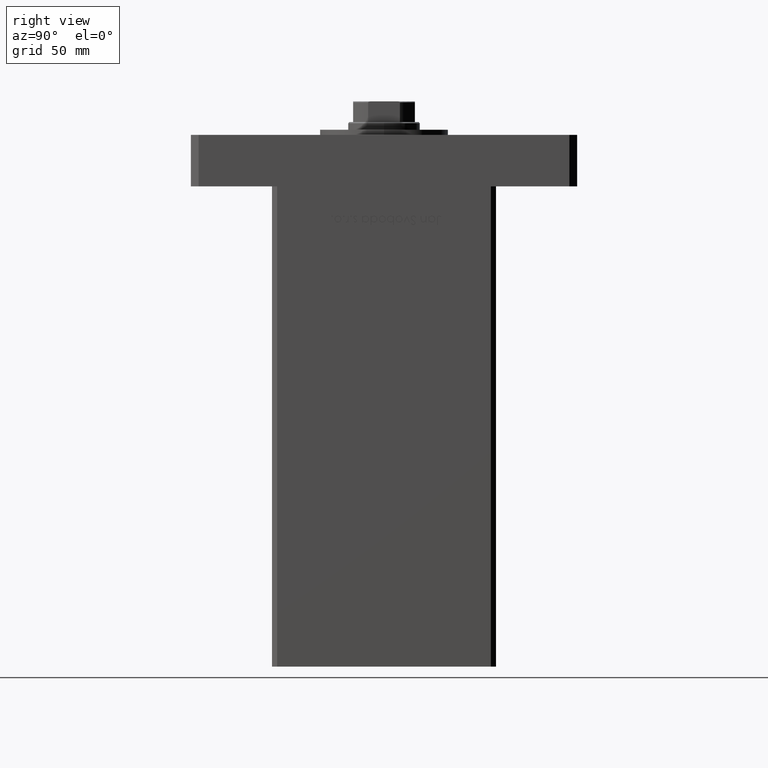
[diagram: clean part render]
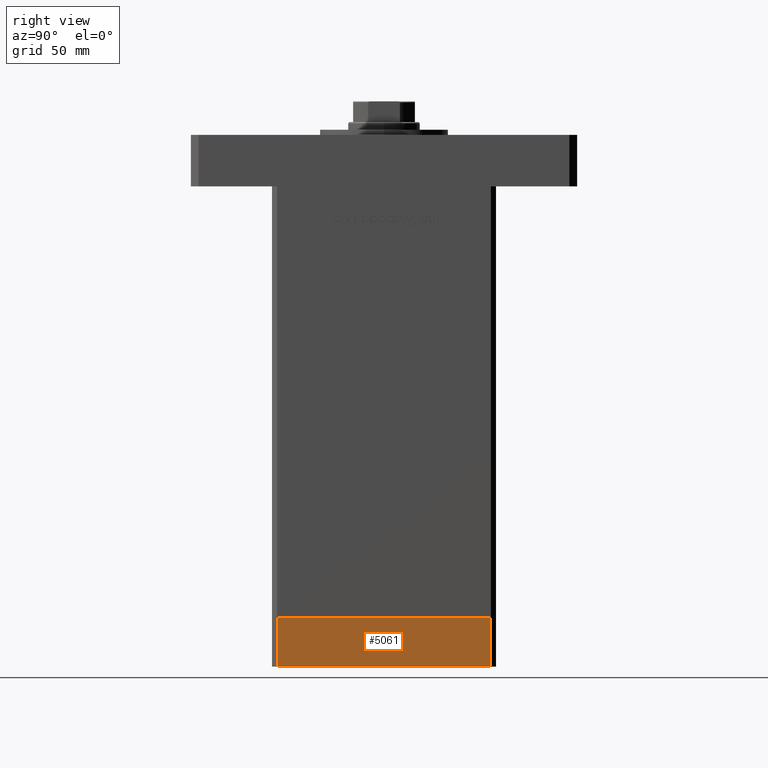
[diagram: same view with one face highlighted and labeled with its STEP entity id]
A machine part, right view. The second image highlights one B-rep face of the part: STEP entity #5061.
In plain terms, the highlighted planar face has unit normal (1, -0, 0).
Its self-contained STEP definition (entity closure, byte-faithful):
#2444 = ORIENTED_EDGE ( 'NONE', *, *, #19954, .F. ) ;
#3972 = FACE_OUTER_BOUND ( 'NONE', #14146, .T. ) ;
#4945 = DIRECTION ( 'NONE',  ( 8.360113137237628665E-17, -1.000000000000000000, 0.000000000000000000 ) ) ;
#5061 = ADVANCED_FACE ( 'NONE', ( #3972 ), #45697, .T. ) ;
#7606 = VERTEX_POINT ( 'NONE', #50317 ) ;
#13474 = CARTESIAN_POINT ( 'NONE',  ( -50.00000000000000000, -41.50000000000000000, -19.00000000000000000 ) ) ;
#14146 = EDGE_LOOP ( 'NONE', ( #24068, #2444, #17307, #45406 ) ) ;
#17307 = ORIENTED_EDGE ( 'NONE', *, *, #53851, .T. ) ;
#19954 = EDGE_CURVE ( 'NONE', #53169, #7606, #32818, .T. ) ;
#20185 = AXIS2_PLACEMENT_3D ( 'NONE', #20897, #24696, #41330 ) ;
#20897 = CARTESIAN_POINT ( 'NONE',  ( -50.00000000000000711, 41.49999999999995026, -19.00000000000000000 ) ) ;
#21066 = LINE ( 'NONE', #46125, #49749 ) ;
#23832 = CARTESIAN_POINT ( 'NONE',  ( -50.00000000000000000, -41.50000000000000000, -19.00000000000000000 ) ) ;
#23979 = CARTESIAN_POINT ( 'NONE',  ( -50.00000000000000000, -41.50000000000000000, 0.000000000000000000 ) ) ;
#24068 = ORIENTED_EDGE ( 'NONE', *, *, #43906, .F. ) ;
#24696 = DIRECTION ( 'NONE',  ( -1.000000000000000000, -8.360113137237628665E-17, 0.000000000000000000 ) ) ;
#25195 = DIRECTION ( 'NONE',  ( 0.000000000000000000, 0.000000000000000000, 1.000000000000000000 ) ) ;
#26202 = VERTEX_POINT ( 'NONE', #23979 ) ;
#28286 = VECTOR ( 'NONE', #37987, 1000.000000000000000 ) ;
#29533 = CARTESIAN_POINT ( 'NONE',  ( -50.00000000000000711, 41.49999999999995026, -19.00000000000000000 ) ) ;
#32818 = LINE ( 'NONE', #29533, #28286 ) ;
#36229 = VECTOR ( 'NONE', #4945, 1000.000000000000000 ) ;
#36643 = CARTESIAN_POINT ( 'NONE',  ( -50.00000000000000711, 41.49999999999995026, -19.00000000000000000 ) ) ;
#37669 = DIRECTION ( 'NONE',  ( 8.360113137237628665E-17, -1.000000000000000000, 0.000000000000000000 ) ) ;
#37987 = DIRECTION ( 'NONE',  ( 0.000000000000000000, 0.000000000000000000, 1.000000000000000000 ) ) ;
#39149 = EDGE_CURVE ( 'NONE', #53116, #26202, #42364, .T. ) ;
#41330 = DIRECTION ( 'NONE',  ( 8.360113137237628665E-17, -1.000000000000000000, 0.000000000000000000 ) ) ;
#42364 = LINE ( 'NONE', #13474, #42776 ) ;
#42567 = LINE ( 'NONE', #45609, #36229 ) ;
#42776 = VECTOR ( 'NONE', #25195, 1000.000000000000000 ) ;
#43906 = EDGE_CURVE ( 'NONE', #7606, #26202, #21066, .T. ) ;
#45406 = ORIENTED_EDGE ( 'NONE', *, *, #39149, .T. ) ;
#45609 = CARTESIAN_POINT ( 'NONE',  ( -50.00000000000000711, 41.49999999999995026, -19.00000000000000000 ) ) ;
#45697 = PLANE ( 'NONE',  #20185 ) ;
#46125 = CARTESIAN_POINT ( 'NONE',  ( -50.00000000000000711, 41.49999999999995026, 0.000000000000000000 ) ) ;
#49749 = VECTOR ( 'NONE', #37669, 1000.000000000000000 ) ;
#50317 = CARTESIAN_POINT ( 'NONE',  ( -50.00000000000000711, 41.49999999999995026, 0.000000000000000000 ) ) ;
#53116 = VERTEX_POINT ( 'NONE', #23832 ) ;
#53169 = VERTEX_POINT ( 'NONE', #36643 ) ;
#53851 = EDGE_CURVE ( 'NONE', #53169, #53116, #42567, .T. ) ;